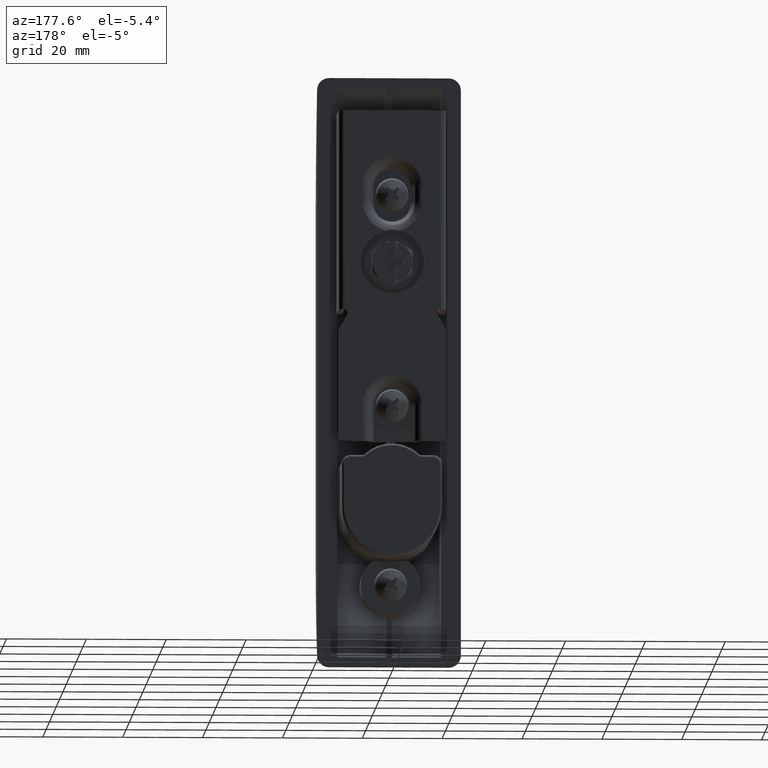
[diagram: clean part render]
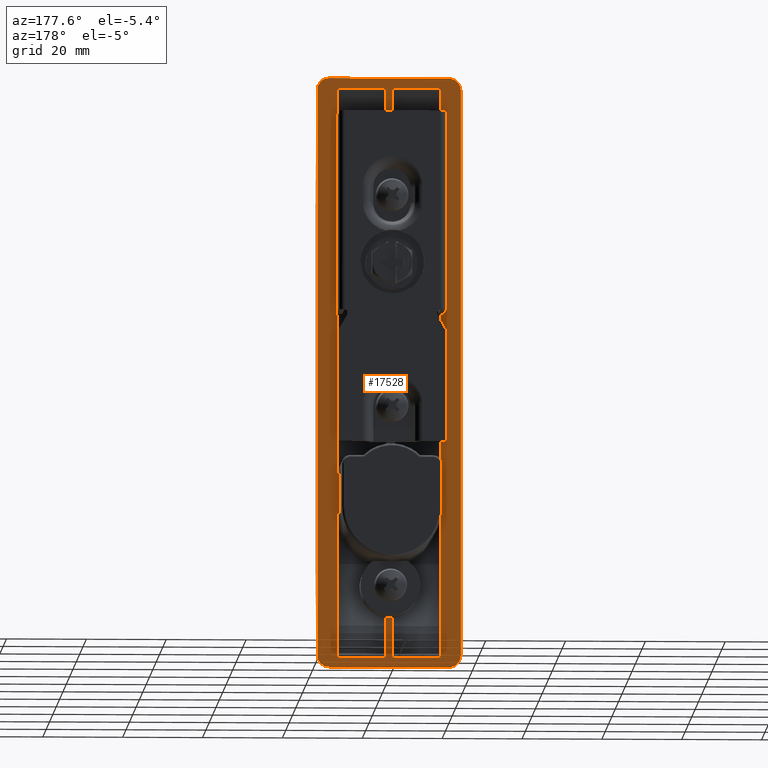
[diagram: same view with one face highlighted and labeled with its STEP entity id]
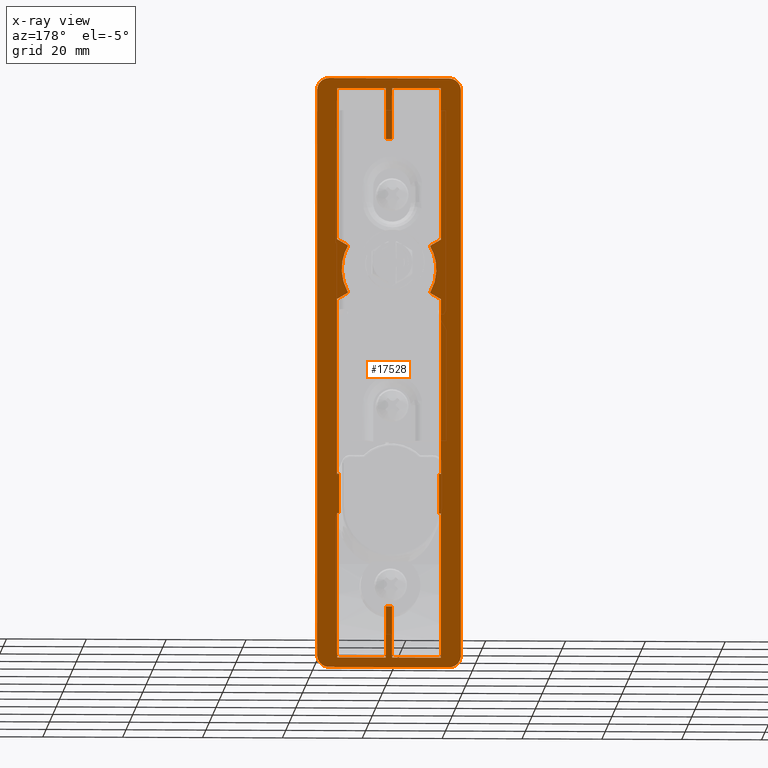
[diagram: x-ray of the same camera — body ghosted, the highlighted face saturated]
A machine part, auxiliary view. The second image highlights one B-rep face of the part: STEP entity #17528.
The next image is the same camera in x-ray: the body ghosted, the highlighted face saturated — about 1% of this face is hidden behind the body in this view.
In plain terms, the highlighted face is a freeform B-spline surface patch.
Its self-contained STEP definition (entity closure, byte-faithful):
#9564=CARTESIAN_POINT('',(0.750000000000028,7.644310E-014,-112.937059837324600));
#9565=VERTEX_POINT('',#9564);
#9571=CARTESIAN_POINT('',(-0.750000000000028,7.644310E-014,-112.937059837324600));
#9572=VERTEX_POINT('',#9571);
#9573=CARTESIAN_POINT('',(0.750000000000032,7.388684E-014,-112.937059837324600));
#9574=CARTESIAN_POINT('',(2.385245E-015,7.388684E-014,-113.063832975533870));
#9575=CARTESIAN_POINT('',(-0.750000000000030,7.388684E-014,-112.937059837324600));
#9583=(BOUNDED_CURVE()B_SPLINE_CURVE(2,(#9573,#9574,#9575),.UNSPECIFIED.,.F.,.U.)CURVE()GEOMETRIC_REPRESENTATION_ITEM()QUASI_UNIFORM_CURVE()RATIONAL_B_SPLINE_CURVE((1.0,0.986013297183268,1.0))REPRESENTATION_ITEM(''));
#9584=EDGE_CURVE('',#9565,#9572,#9583,.T.);
#10206=CARTESIAN_POINT('',(-0.750000000000000,9.769963E-015,4.437059837324711));
#10207=VERTEX_POINT('',#10206);
#10213=CARTESIAN_POINT('',(0.750000000000028,8.822026E-015,4.437059837324711));
#10214=VERTEX_POINT('',#10213);
#10215=CARTESIAN_POINT('',(-0.750000000000000,1.137829E-014,4.437059837324711));
#10216=CARTESIAN_POINT('',(1.409463E-014,1.137829E-014,4.563832975533992));
#10217=CARTESIAN_POINT('',(0.750000000000027,1.137829E-014,4.437059837324707));
#10225=(BOUNDED_CURVE()B_SPLINE_CURVE(2,(#10215,#10216,#10217),.UNSPECIFIED.,.F.,.U.)CURVE()GEOMETRIC_REPRESENTATION_ITEM()QUASI_UNIFORM_CURVE()RATIONAL_B_SPLINE_CURVE((1.0,0.986013297183269,1.0))REPRESENTATION_ITEM(''));
#10226=EDGE_CURVE('',#10207,#10214,#10225,.T.);
#13308=CARTESIAN_POINT('',(-14.999998000741920,8.526513E-014,-128.249999999997410));
#13309=VERTEX_POINT('',#13308);
#13310=CARTESIAN_POINT('',(-17.999998000741950,8.353678E-014,-125.249999999997200));
#13311=VERTEX_POINT('',#13310);
#13312=CARTESIAN_POINT('',(-14.999998000741940,8.353678E-014,-128.249999999997190));
#13313=CARTESIAN_POINT('',(-17.999998000741932,8.353678E-014,-128.249999999997190));
#13314=CARTESIAN_POINT('',(-17.999998000741940,8.353678E-014,-125.249999999997200));
#13322=(BOUNDED_CURVE()B_SPLINE_CURVE(2,(#13312,#13313,#13314),.UNSPECIFIED.,.F.,.U.)CURVE()GEOMETRIC_REPRESENTATION_ITEM()QUASI_UNIFORM_CURVE()RATIONAL_B_SPLINE_CURVE((1.0,0.707106781186548,1.0))REPRESENTATION_ITEM(''));
#13323=EDGE_CURVE('',#13309,#13311,#13322,.T.);
#13790=CARTESIAN_POINT('',(-17.999998000741950,1.728347E-015,16.750000000002601));
#13791=VERTEX_POINT('',#13790);
#13792=CARTESIAN_POINT('',(-14.999998000741920,8.526513E-014,19.750000000002601));
#13793=VERTEX_POINT('',#13792);
#13794=CARTESIAN_POINT('',(-17.999998000741940,1.728347E-015,16.750000000002601));
#13795=CARTESIAN_POINT('',(-17.999998000741943,1.728347E-015,17.992640687121892));
#13796=CARTESIAN_POINT('',(-17.121318344301582,1.728347E-015,18.871320343562250));
#13797=CARTESIAN_POINT('',(-16.242638687861216,1.728347E-015,19.750000000002597));
#13798=CARTESIAN_POINT('',(-14.999998000741920,8.526513E-014,19.750000000002601));
#13806=(BOUNDED_CURVE()B_SPLINE_CURVE(2,(#13794,#13795,#13796,#13797,#13798),.UNSPECIFIED.,.F.,.U.)B_SPLINE_CURVE_WITH_KNOTS((3,2,3),(0.0,0.500000000000000,1.0),.UNSPECIFIED.)CURVE()GEOMETRIC_REPRESENTATION_ITEM()RATIONAL_B_SPLINE_CURVE((1.0,0.923879532511286,1.0,0.923879532511286,1.0))REPRESENTATION_ITEM(''));
#13807=EDGE_CURVE('',#13791,#13793,#13806,.T.);
#13877=CARTESIAN_POINT('',(18.0,1.728347E-015,16.750000000002601));
#13878=VERTEX_POINT('',#13877);
#13884=CARTESIAN_POINT('',(15.0,8.526513E-014,19.750000000002601));
#13885=VERTEX_POINT('',#13884);
#13886=CARTESIAN_POINT('',(15.0,8.526513E-014,19.750000000002601));
#13887=CARTESIAN_POINT('',(18.000000000000007,1.734723E-015,19.750000000002593));
#13888=CARTESIAN_POINT('',(18.0,1.734723E-015,16.750000000002601));
#13896=(BOUNDED_CURVE()B_SPLINE_CURVE(2,(#13886,#13887,#13888),.UNSPECIFIED.,.F.,.U.)CURVE()GEOMETRIC_REPRESENTATION_ITEM()QUASI_UNIFORM_CURVE()RATIONAL_B_SPLINE_CURVE((1.0,0.707106781186548,1.0))REPRESENTATION_ITEM(''));
#13897=EDGE_CURVE('',#13885,#13878,#13896,.T.);
#14318=CARTESIAN_POINT('',(15.0,8.526513E-014,-128.249999999997410));
#14319=VERTEX_POINT('',#14318);
#14325=CARTESIAN_POINT('',(18.0,8.353678E-014,-125.249999999997200));
#14326=VERTEX_POINT('',#14325);
#14327=CARTESIAN_POINT('',(18.0,8.353678E-014,-125.249999999997200));
#14328=CARTESIAN_POINT('',(18.000000000000007,8.353678E-014,-128.249999999997190));
#14329=CARTESIAN_POINT('',(15.0,8.353678E-014,-128.249999999997190));
#14337=(BOUNDED_CURVE()B_SPLINE_CURVE(2,(#14327,#14328,#14329),.UNSPECIFIED.,.F.,.U.)CURVE()GEOMETRIC_REPRESENTATION_ITEM()QUASI_UNIFORM_CURVE()RATIONAL_B_SPLINE_CURVE((1.0,0.707106781186548,1.0))REPRESENTATION_ITEM(''));
#14338=EDGE_CURVE('',#14326,#14319,#14337,.T.);
#15693=CARTESIAN_POINT('',(-0.750000000000028,1.436422E-015,17.256712736034949));
#15694=VERTEX_POINT('',#15693);
#15700=CARTESIAN_POINT('',(-0.750000000000000,9.769963E-015,4.437059837324711));
#15701=CARTESIAN_POINT('',(-0.750000000000028,1.436422E-015,17.256712736034949));
#15702=QUASI_UNIFORM_CURVE('',1,(#15700,#15701),.UNSPECIFIED.,.F.,.U.);
#15703=EDGE_CURVE('',#10207,#15694,#15702,.T.);
#15729=CARTESIAN_POINT('',(0.750000000000028,1.436422E-015,17.256712736034949));
#15730=VERTEX_POINT('',#15729);
#15731=CARTESIAN_POINT('',(0.750000000000028,8.822026E-015,4.437059837324711));
#15732=CARTESIAN_POINT('',(0.750000000000028,1.436422E-015,17.256712736034949));
#15733=QUASI_UNIFORM_CURVE('',1,(#15731,#15732),.UNSPECIFIED.,.F.,.U.);
#15734=EDGE_CURVE('',#10214,#15730,#15733,.T.);
#16341=CARTESIAN_POINT('',(-0.750000000000028,8.388004E-014,-125.845816871883400));
#16342=VERTEX_POINT('',#16341);
#16343=CARTESIAN_POINT('',(-0.750000000000028,8.388004E-014,-125.845816871883400));
#16344=CARTESIAN_POINT('',(-0.750000000000028,7.644310E-014,-112.937059837324600));
#16345=QUASI_UNIFORM_CURVE('',1,(#16343,#16344),.UNSPECIFIED.,.F.,.U.);
#16346=EDGE_CURVE('',#16342,#9572,#16345,.T.);
#16376=CARTESIAN_POINT('',(0.750000000000028,8.388004E-014,-125.845816871883400));
#16377=VERTEX_POINT('',#16376);
#16378=CARTESIAN_POINT('',(0.750000000000028,8.388004E-014,-125.845816871883400));
#16379=CARTESIAN_POINT('',(0.750000000000028,7.644310E-014,-112.937059837324600));
#16380=QUASI_UNIFORM_CURVE('',1,(#16378,#16379),.UNSPECIFIED.,.F.,.U.);
#16381=EDGE_CURVE('',#16377,#9565,#16380,.T.);
#16544=CARTESIAN_POINT('',(-12.499999999999840,0.0,-79.649999999997306));
#16545=VERTEX_POINT('',#16544);
#16551=CARTESIAN_POINT('',(-13.0,5.726590E-014,-79.649999999997306));
#16552=VERTEX_POINT('',#16551);
#16553=CARTESIAN_POINT('',(-12.499999999999840,0.0,-79.649999999997306));
#16554=CARTESIAN_POINT('',(-13.0,5.726590E-014,-79.649999999997306));
#16555=QUASI_UNIFORM_CURVE('',1,(#16553,#16554),.UNSPECIFIED.,.F.,.U.);
#16556=EDGE_CURVE('',#16545,#16552,#16555,.T.);
#16571=CARTESIAN_POINT('',(12.999998029093900,5.726590E-014,-79.649999999997306));
#16572=VERTEX_POINT('',#16571);
#16573=CARTESIAN_POINT('',(12.500000000000000,0.0,-79.649999999997306));
#16574=VERTEX_POINT('',#16573);
#16575=CARTESIAN_POINT('',(12.999998029093900,5.726590E-014,-79.649999999997306));
#16576=CARTESIAN_POINT('',(12.500000000000000,0.0,-79.649999999997306));
#16577=QUASI_UNIFORM_CURVE('',1,(#16575,#16576),.UNSPECIFIED.,.F.,.U.);
#16578=EDGE_CURVE('',#16572,#16574,#16577,.T.);
#16607=CARTESIAN_POINT('',(-10.249590728541660,-1.734723E-015,-34.167603966204098));
#16608=VERTEX_POINT('',#16607);
#16609=CARTESIAN_POINT('',(-13.0,3.197762E-014,-35.755553499462152));
#16610=VERTEX_POINT('',#16609);
#16611=CARTESIAN_POINT('',(-10.249590728541660,-1.734723E-015,-34.167603966204098));
#16612=CARTESIAN_POINT('',(-13.0,3.197762E-014,-35.755553499462152));
#16613=QUASI_UNIFORM_CURVE('',1,(#16611,#16612),.UNSPECIFIED.,.F.,.U.);
#16614=EDGE_CURVE('',#16608,#16610,#16613,.T.);
#16660=CARTESIAN_POINT('',(10.249590728541500,-1.734723E-015,-34.167603966204403));
#16661=VERTEX_POINT('',#16660);
#16675=CARTESIAN_POINT('',(12.999999914483000,0.0,-35.755553450089401));
#16676=VERTEX_POINT('',#16675);
#16677=CARTESIAN_POINT('',(12.999999914483000,0.0,-35.755553450089401));
#16678=CARTESIAN_POINT('',(10.249590728541500,-1.734723E-015,-34.167603966204403));
#16679=QUASI_UNIFORM_CURVE('',1,(#16677,#16678),.UNSPECIFIED.,.F.,.U.);
#16680=EDGE_CURVE('',#16676,#16661,#16679,.T.);
#16695=CARTESIAN_POINT('',(12.500000000000000,0.0,-89.649999999997306));
#16696=VERTEX_POINT('',#16695);
#16704=CARTESIAN_POINT('',(12.999998029093900,6.302706E-014,-89.649999999997306));
#16705=VERTEX_POINT('',#16704);
#16706=CARTESIAN_POINT('',(12.500000000000000,0.0,-89.649999999997306));
#16707=CARTESIAN_POINT('',(12.999998029093900,6.302706E-014,-89.649999999997306));
#16708=QUASI_UNIFORM_CURVE('',1,(#16706,#16707),.UNSPECIFIED.,.F.,.U.);
#16709=EDGE_CURVE('',#16696,#16705,#16708,.T.);
#16733=CARTESIAN_POINT('',(-12.500000000000000,0.0,-89.649999999997306));
#16734=VERTEX_POINT('',#16733);
#16747=CARTESIAN_POINT('',(-13.0,6.302706E-014,-89.649999999997306));
#16748=VERTEX_POINT('',#16747);
#16754=CARTESIAN_POINT('',(-13.0,6.302706E-014,-89.649999999997306));
#16755=CARTESIAN_POINT('',(-12.500000000000000,0.0,-89.649999999997306));
#16756=QUASI_UNIFORM_CURVE('',1,(#16754,#16755),.UNSPECIFIED.,.F.,.U.);
#16757=EDGE_CURVE('',#16748,#16734,#16756,.T.);
#16767=CARTESIAN_POINT('',(12.999999914483000,0.0,-20.744446549905948));
#16768=VERTEX_POINT('',#16767);
#16776=CARTESIAN_POINT('',(10.249590728541801,-1.734723E-015,-22.332396033790751));
#16777=VERTEX_POINT('',#16776);
#16778=CARTESIAN_POINT('',(10.249590728541801,-1.734723E-015,-22.332396033790751));
#16779=CARTESIAN_POINT('',(12.999999914483000,0.0,-20.744446549905948));
#16780=QUASI_UNIFORM_CURVE('',1,(#16778,#16779),.UNSPECIFIED.,.F.,.U.);
#16781=EDGE_CURVE('',#16777,#16768,#16780,.T.);
#16827=CARTESIAN_POINT('',(-10.249590728541801,-1.734723E-015,-22.332396033790751));
#16828=VERTEX_POINT('',#16827);
#16842=CARTESIAN_POINT('',(-13.0,2.332949E-014,-20.744446500532650));
#16843=VERTEX_POINT('',#16842);
#16844=CARTESIAN_POINT('',(-13.0,2.332949E-014,-20.744446500532650));
#16845=CARTESIAN_POINT('',(-10.249590728541801,-1.734723E-015,-22.332396033790751));
#16846=QUASI_UNIFORM_CURVE('',1,(#16844,#16845),.UNSPECIFIED.,.F.,.U.);
#16847=EDGE_CURVE('',#16843,#16828,#16846,.T.);
#16965=CARTESIAN_POINT('',(12.500000000000000,0.0,-79.649999999997306));
#16966=CARTESIAN_POINT('',(12.500000000000000,0.0,-89.649999999997306));
#16967=QUASI_UNIFORM_CURVE('',1,(#16965,#16966),.UNSPECIFIED.,.F.,.U.);
#16968=EDGE_CURVE('',#16574,#16696,#16967,.T.);
#17070=CARTESIAN_POINT('',(-12.500000000000000,0.0,-89.649999999997306));
#17071=CARTESIAN_POINT('',(-12.499999999999840,0.0,-79.649999999997306));
#17072=QUASI_UNIFORM_CURVE('',1,(#17070,#17071),.UNSPECIFIED.,.F.,.U.);
#17073=EDGE_CURVE('',#16734,#16545,#17072,.T.);
#17158=CARTESIAN_POINT('',(12.999998029093900,0.0,17.256712736034949));
#17159=VERTEX_POINT('',#17158);
#17160=CARTESIAN_POINT('',(12.999998029093900,0.0,17.256712736034949));
#17161=CARTESIAN_POINT('',(0.750000000000028,1.436422E-015,17.256712736034949));
#17162=QUASI_UNIFORM_CURVE('',1,(#17160,#17161),.UNSPECIFIED.,.F.,.U.);
#17163=EDGE_CURVE('',#17159,#15730,#17162,.T.);
#17178=CARTESIAN_POINT('',(12.999998029093900,8.526513E-014,-125.845816871883400));
#17179=VERTEX_POINT('',#17178);
#17180=CARTESIAN_POINT('',(12.999998029093900,8.526513E-014,-125.845816871883400));
#17181=CARTESIAN_POINT('',(0.750000000000028,8.388004E-014,-125.845816871883400));
#17182=QUASI_UNIFORM_CURVE('',1,(#17180,#17181),.UNSPECIFIED.,.F.,.U.);
#17183=EDGE_CURVE('',#17179,#16377,#17182,.T.);
#17206=CARTESIAN_POINT('',(18.0,1.728347E-015,16.750000000002601));
#17207=CARTESIAN_POINT('',(18.0,8.353678E-014,-125.249999999997200));
#17208=QUASI_UNIFORM_CURVE('',1,(#17206,#17207),.UNSPECIFIED.,.F.,.U.);
#17209=EDGE_CURVE('',#13878,#14326,#17208,.T.);
#17229=CARTESIAN_POINT('',(-17.999998000741950,1.728347E-015,16.750000000002601));
#17230=CARTESIAN_POINT('',(-17.999998000741950,8.353678E-014,-125.249999999997200));
#17231=QUASI_UNIFORM_CURVE('',1,(#17229,#17230),.UNSPECIFIED.,.F.,.U.);
#17232=EDGE_CURVE('',#13791,#13311,#17231,.T.);
#17242=CARTESIAN_POINT('',(-14.999998000741920,8.526513E-014,19.750000000002601));
#17243=CARTESIAN_POINT('',(15.0,8.526513E-014,19.750000000002601));
#17244=QUASI_UNIFORM_CURVE('',1,(#17242,#17243),.UNSPECIFIED.,.F.,.U.);
#17245=EDGE_CURVE('',#13793,#13885,#17244,.T.);
#17414=CARTESIAN_POINT('',(-14.999998000741920,8.526513E-014,-128.249999999997410));
#17415=CARTESIAN_POINT('',(15.0,8.526513E-014,-128.249999999997410));
#17416=QUASI_UNIFORM_CURVE('',1,(#17414,#17415),.UNSPECIFIED.,.F.,.U.);
#17417=EDGE_CURVE('',#13309,#14319,#17416,.T.);
#17423=CARTESIAN_POINT('',(-19.798198169046259,0.0,27.142599713149881));
#17424=CARTESIAN_POINT('',(-19.798198169046259,0.0,-135.642603682814010));
#17425=CARTESIAN_POINT('',(19.798200812034430,0.0,27.142599713149892));
#17426=CARTESIAN_POINT('',(19.798200812034430,0.0,-135.642603682814010));
#17427=B_SPLINE_SURFACE_WITH_KNOTS('',1,1,((#17423,#17425),(#17424,#17426)),.UNSPECIFIED.,.F.,.F.,.U.,(2,2),(2,2),(0.0,162.785203395963890),(0.0,39.596398981080689),.UNSPECIFIED.);
#17428=ORIENTED_EDGE('',*,*,#17417,.F.);
#17429=ORIENTED_EDGE('',*,*,#13323,.T.);
#17430=ORIENTED_EDGE('',*,*,#17232,.F.);
#17431=ORIENTED_EDGE('',*,*,#13807,.T.);
#17432=ORIENTED_EDGE('',*,*,#17245,.T.);
#17433=ORIENTED_EDGE('',*,*,#13897,.T.);
#17434=ORIENTED_EDGE('',*,*,#17209,.T.);
#17435=ORIENTED_EDGE('',*,*,#14338,.T.);
#17436=EDGE_LOOP('',(#17428,#17429,#17430,#17431,#17432,#17433,#17434,#17435));
#17437=FACE_OUTER_BOUND('',#17436,.T.);
#17438=CARTESIAN_POINT('',(-13.0,0.0,17.256712736034949));
#17439=VERTEX_POINT('',#17438);
#17440=CARTESIAN_POINT('',(-0.750000000000028,1.436422E-015,17.256712736034949));
#17441=CARTESIAN_POINT('',(-13.0,0.0,17.256712736034949));
#17442=QUASI_UNIFORM_CURVE('',1,(#17440,#17441),.UNSPECIFIED.,.F.,.U.);
#17443=EDGE_CURVE('',#15694,#17439,#17442,.T.);
#17444=ORIENTED_EDGE('',*,*,#17443,.T.);
#17445=CARTESIAN_POINT('',(-13.0,0.0,17.256712736034949));
#17446=CARTESIAN_POINT('',(-13.0,2.332949E-014,-20.744446500532650));
#17447=QUASI_UNIFORM_CURVE('',1,(#17445,#17446),.UNSPECIFIED.,.F.,.U.);
#17448=EDGE_CURVE('',#17439,#16843,#17447,.T.);
#17449=ORIENTED_EDGE('',*,*,#17448,.T.);
#17450=ORIENTED_EDGE('',*,*,#16847,.T.);
#17451=CARTESIAN_POINT('',(-10.249590728541650,-1.734723E-015,-34.167603966204091));
#17452=CARTESIAN_POINT('',(-13.666120971388521,-1.734723E-015,-28.249999999997460));
#17453=CARTESIAN_POINT('',(-10.249590728541801,-1.734723E-015,-22.332396033790751));
#17461=(BOUNDED_CURVE()B_SPLINE_CURVE(2,(#17451,#17452,#17453),.UNSPECIFIED.,.F.,.U.)CURVE()GEOMETRIC_REPRESENTATION_ITEM()QUASI_UNIFORM_CURVE()RATIONAL_B_SPLINE_CURVE((1.0,0.866025403784453,1.0))REPRESENTATION_ITEM(''));
#17462=EDGE_CURVE('',#16608,#16828,#17461,.T.);
#17463=ORIENTED_EDGE('',*,*,#17462,.F.);
#17464=ORIENTED_EDGE('',*,*,#16614,.T.);
#17465=CARTESIAN_POINT('',(-13.0,3.197762E-014,-35.755553499462152));
#17466=CARTESIAN_POINT('',(-13.0,5.726590E-014,-79.649999999997306));
#17467=QUASI_UNIFORM_CURVE('',1,(#17465,#17466),.UNSPECIFIED.,.F.,.U.);
#17468=EDGE_CURVE('',#16610,#16552,#17467,.T.);
#17469=ORIENTED_EDGE('',*,*,#17468,.T.);
#17470=ORIENTED_EDGE('',*,*,#16556,.F.);
#17471=ORIENTED_EDGE('',*,*,#17073,.F.);
#17472=ORIENTED_EDGE('',*,*,#16757,.F.);
#17473=CARTESIAN_POINT('',(-13.0,8.388004E-014,-125.845816871883400));
#17474=VERTEX_POINT('',#17473);
#17475=CARTESIAN_POINT('',(-13.0,6.302706E-014,-89.649999999997306));
#17476=CARTESIAN_POINT('',(-13.0,8.388004E-014,-125.845816871883400));
#17477=QUASI_UNIFORM_CURVE('',1,(#17475,#17476),.UNSPECIFIED.,.F.,.U.);
#17478=EDGE_CURVE('',#16748,#17474,#17477,.T.);
#17479=ORIENTED_EDGE('',*,*,#17478,.T.);
#17480=CARTESIAN_POINT('',(-0.750000000000028,8.388004E-014,-125.845816871883400));
#17481=CARTESIAN_POINT('',(-13.0,8.388004E-014,-125.845816871883400));
#17482=QUASI_UNIFORM_CURVE('',1,(#17480,#17481),.UNSPECIFIED.,.F.,.U.);
#17483=EDGE_CURVE('',#16342,#17474,#17482,.T.);
#17484=ORIENTED_EDGE('',*,*,#17483,.F.);
#17485=ORIENTED_EDGE('',*,*,#16346,.T.);
#17486=ORIENTED_EDGE('',*,*,#9584,.F.);
#17487=ORIENTED_EDGE('',*,*,#16381,.F.);
#17488=ORIENTED_EDGE('',*,*,#17183,.F.);
#17489=CARTESIAN_POINT('',(12.999998029093900,6.302706E-014,-89.649999999997306));
#17490=CARTESIAN_POINT('',(12.999998029093900,8.526513E-014,-125.845816871883400));
#17491=QUASI_UNIFORM_CURVE('',1,(#17489,#17490),.UNSPECIFIED.,.F.,.U.);
#17492=EDGE_CURVE('',#16705,#17179,#17491,.T.);
#17493=ORIENTED_EDGE('',*,*,#17492,.F.);
#17494=ORIENTED_EDGE('',*,*,#16709,.F.);
#17495=ORIENTED_EDGE('',*,*,#16968,.F.);
#17496=ORIENTED_EDGE('',*,*,#16578,.F.);
#17497=CARTESIAN_POINT('',(12.999999914483000,0.0,-35.755553450089401));
#17498=CARTESIAN_POINT('',(12.999998029093900,5.726590E-014,-79.649999999997306));
#17499=QUASI_UNIFORM_CURVE('',1,(#17497,#17498),.UNSPECIFIED.,.F.,.U.);
#17500=EDGE_CURVE('',#16676,#16572,#17499,.T.);
#17501=ORIENTED_EDGE('',*,*,#17500,.F.);
#17502=ORIENTED_EDGE('',*,*,#16680,.T.);
#17503=CARTESIAN_POINT('',(10.249590728541479,-1.734723E-015,-34.167603966204389));
#17504=CARTESIAN_POINT('',(13.666120971388633,-1.734723E-015,-28.249999999997669));
#17505=CARTESIAN_POINT('',(10.249590728541801,-1.734723E-015,-22.332396033790751));
#17513=(BOUNDED_CURVE()B_SPLINE_CURVE(2,(#17503,#17504,#17505),.UNSPECIFIED.,.F.,.U.)CURVE()GEOMETRIC_REPRESENTATION_ITEM()QUASI_UNIFORM_CURVE()RATIONAL_B_SPLINE_CURVE((1.0,0.866025403784446,1.0))REPRESENTATION_ITEM(''));
#17514=EDGE_CURVE('',#16661,#16777,#17513,.T.);
#17515=ORIENTED_EDGE('',*,*,#17514,.T.);
#17516=ORIENTED_EDGE('',*,*,#16781,.T.);
#17517=CARTESIAN_POINT('',(12.999998029093900,0.0,17.256712736034949));
#17518=CARTESIAN_POINT('',(12.999999914483000,0.0,-20.744446549905948));
#17519=QUASI_UNIFORM_CURVE('',1,(#17517,#17518),.UNSPECIFIED.,.F.,.U.);
#17520=EDGE_CURVE('',#17159,#16768,#17519,.T.);
#17521=ORIENTED_EDGE('',*,*,#17520,.F.);
#17522=ORIENTED_EDGE('',*,*,#17163,.T.);
#17523=ORIENTED_EDGE('',*,*,#15734,.F.);
#17524=ORIENTED_EDGE('',*,*,#10226,.F.);
#17525=ORIENTED_EDGE('',*,*,#15703,.T.);
#17526=EDGE_LOOP('',(#17444,#17449,#17450,#17463,#17464,#17469,#17470,#17471,#17472,#17479,#17484,#17485,#17486,#17487,#17488,#17493,#17494,#17495,#17496,#17501,#17502,#17515,#17516,#17521,#17522,#17523,#17524,#17525));
#17527=FACE_BOUND('',#17526,.T.);
#17528=ADVANCED_FACE('',(#17437,#17527),#17427,.F.);